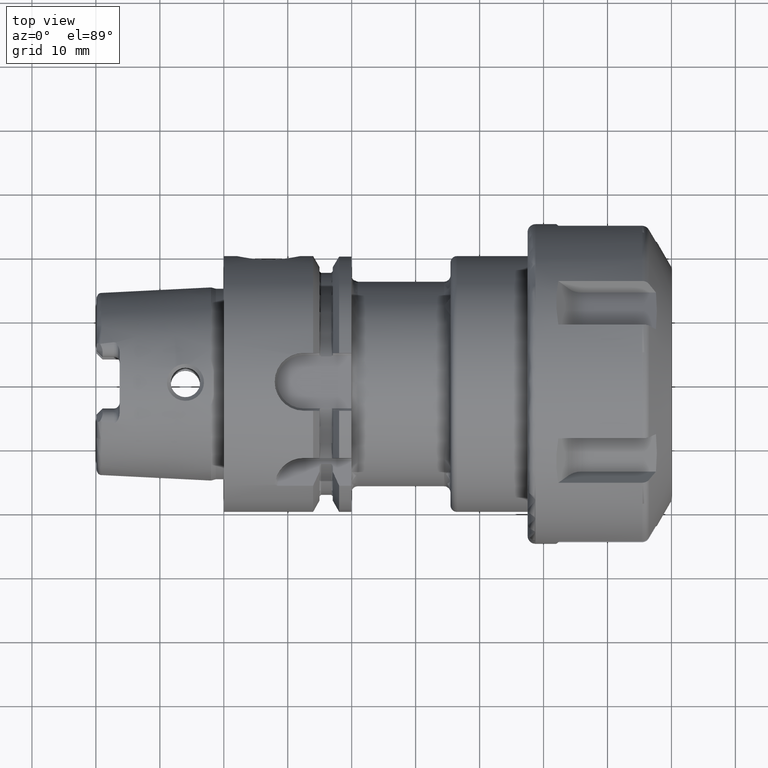
[diagram: clean part render]
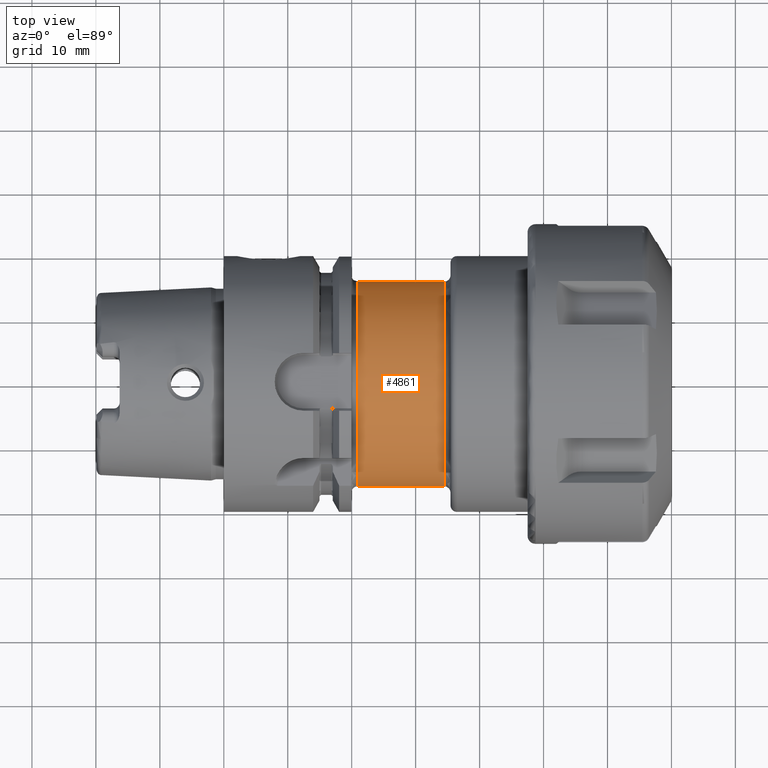
[diagram: same view with one face highlighted and labeled with its STEP entity id]
A machine part, top view. The second image highlights one B-rep face of the part: STEP entity #4861.
In plain terms, the highlighted cylindrical surface (partial cylindrical patch) has radius 16 mm, axis along (1, 0, 0).
Its self-contained STEP definition (entity closure, byte-faithful):
#1504=CARTESIAN_POINT('',(2.095E1,0.E0,0.E0));
#1505=DIRECTION('',(1.E0,0.E0,0.E0));
#1506=DIRECTION('',(0.E0,7.975875579401E-6,9.999999999682E-1));
#1507=AXIS2_PLACEMENT_3D('',#1504,#1505,#1506);
#1509=CARTESIAN_POINT('',(2.095E1,0.E0,0.E0));
#1510=DIRECTION('',(1.E0,0.E0,0.E0));
#1511=DIRECTION('',(0.E0,1.E0,0.E0));
#1512=AXIS2_PLACEMENT_3D('',#1509,#1510,#1511);
#1514=CARTESIAN_POINT('',(3.445E1,0.E0,0.E0));
#1515=DIRECTION('',(1.E0,0.E0,0.E0));
#1516=DIRECTION('',(0.E0,1.E0,0.E0));
#1517=AXIS2_PLACEMENT_3D('',#1514,#1515,#1516);
#1519=DIRECTION('',(-1.E0,0.E0,-1.619075886735E-13));
#1520=VECTOR('',#1519,1.35E1);
#1521=CARTESIAN_POINT('',(3.445E1,-1.6E1,8.711234341830E-14));
#1522=LINE('',#1521,#1520);
#1528=DIRECTION('',(-1.E0,0.E0,1.103310159563E-13));
#1529=VECTOR('',#1528,1.35E1);
#1530=CARTESIAN_POINT('',(3.445E1,1.6E1,-8.943407012859E-14));
#1531=LINE('',#1530,#1529);
#3256=CARTESIAN_POINT('',(2.095E1,4.056581623718E-5,1.599999999995E1));
#3258=VERTEX_POINT('',#3256);
#3268=CARTESIAN_POINT('',(2.095E1,-1.6E1,0.E0));
#3269=VERTEX_POINT('',#3268);
#3270=CARTESIAN_POINT('',(2.095E1,1.6E1,0.E0));
#3271=VERTEX_POINT('',#3270);
#3272=CARTESIAN_POINT('',(3.445E1,-1.6E1,0.E0));
#3273=CARTESIAN_POINT('',(3.445E1,1.6E1,0.E0));
#3274=VERTEX_POINT('',#3272);
#3275=VERTEX_POINT('',#3273);
#4846=CARTESIAN_POINT('',(1.80975E1,0.E0,0.E0));
#4847=DIRECTION('',(1.E0,0.E0,0.E0));
#4848=DIRECTION('',(0.E0,-1.E0,0.E0));
#4849=AXIS2_PLACEMENT_3D('',#4846,#4847,#4848);
#4850=CYLINDRICAL_SURFACE('',#4849,1.6E1);
#4851=ORIENTED_EDGE('',*,*,#4838,.F.);
#4852=ORIENTED_EDGE('',*,*,#4823,.F.);
#4854=ORIENTED_EDGE('',*,*,#4853,.F.);
#4856=ORIENTED_EDGE('',*,*,#4855,.T.);
#4858=ORIENTED_EDGE('',*,*,#4857,.T.);
#4859=EDGE_LOOP('',(#4851,#4852,#4854,#4856,#4858));
#4860=FACE_OUTER_BOUND('',#4859,.F.);
#4861=ADVANCED_FACE('',(#4860),#4850,.T.);
#1508=CIRCLE('',#1507,1.6E1);
#1513=CIRCLE('',#1512,1.6E1);
#1518=CIRCLE('',#1517,1.6E1);
#4823=EDGE_CURVE('',#3271,#3258,#1513,.T.);
#4838=EDGE_CURVE('',#3258,#3269,#1508,.T.);
#4853=EDGE_CURVE('',#3275,#3271,#1531,.T.);
#4855=EDGE_CURVE('',#3275,#3274,#1518,.T.);
#4857=EDGE_CURVE('',#3274,#3269,#1522,.T.);